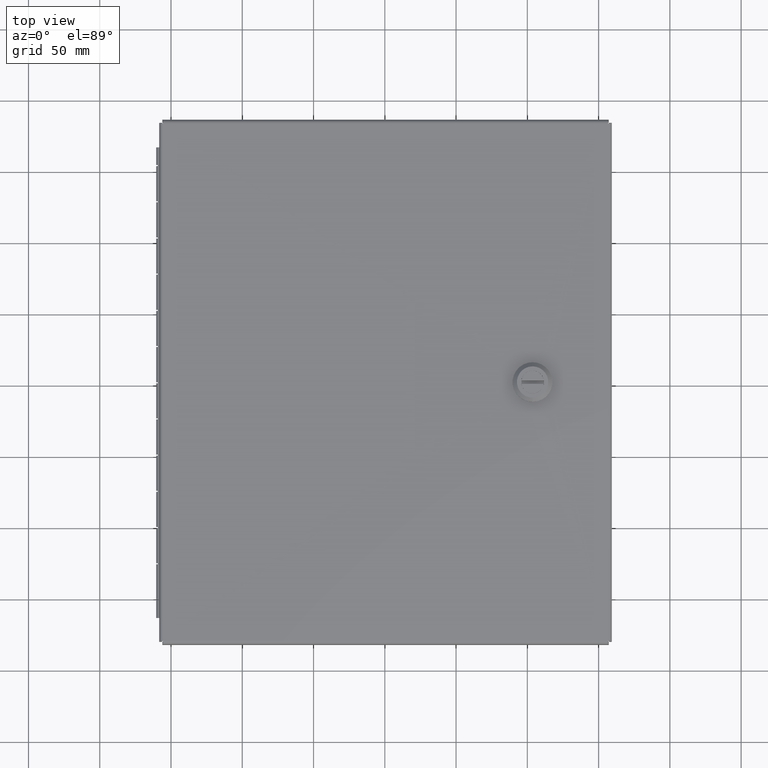
[diagram: clean part render]
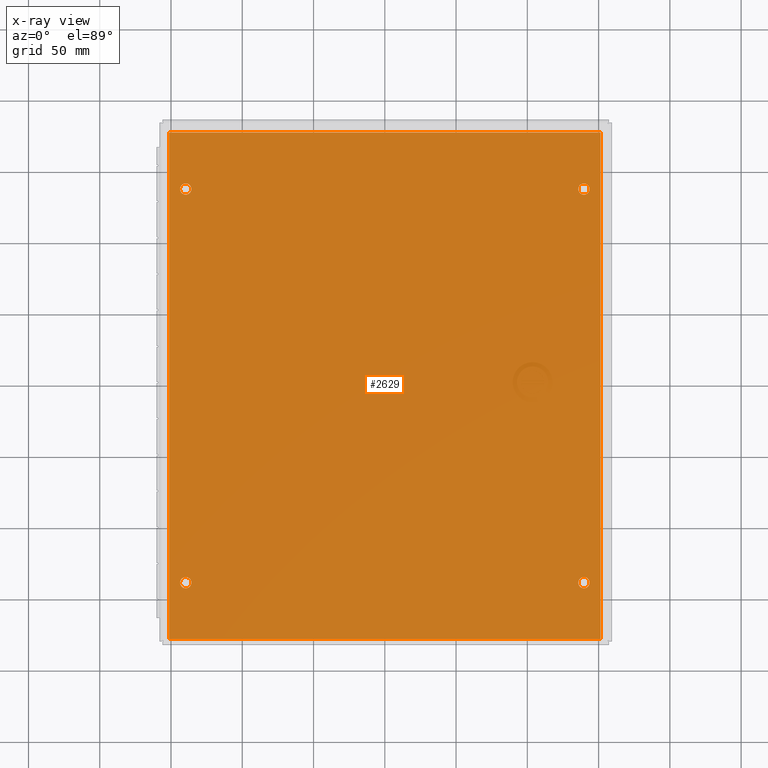
[diagram: x-ray — body ghosted, one internal face saturated and labeled with its STEP entity id]
A machine part, top view, then the same camera in x-ray: the body is ghosted and one INTERNAL B-rep face — a face not visible from any outside direction — is saturated and labeled: STEP entity #2629.
In plain terms, the highlighted planar face has unit normal (0, 0, 1).
Its self-contained STEP definition (entity closure, byte-faithful):
#1567=CARTESIAN_POINT('',(-5.656250000000006,5.437500000000002,0.074));
#1568=VERTEX_POINT('',#1567);
#1569=CARTESIAN_POINT('',(-5.500000000000005,5.437500000000002,0.074));
#1570=DIRECTION('',(0.0,0.0,-1.0));
#1571=DIRECTION('',(1.0,0.0,0.0));
#1572=AXIS2_PLACEMENT_3D('',#1569,#1570,#1571);
#1573=CIRCLE('',#1572,0.15625);
#1574=EDGE_CURVE('',#1568,#1568,#1573,.T.);
#1595=CARTESIAN_POINT('',(-5.656250000000004,-5.437499999999999,0.074));
#1596=VERTEX_POINT('',#1595);
#1597=CARTESIAN_POINT('',(-5.500000000000003,-5.437499999999999,0.074));
#1598=DIRECTION('',(0.0,0.0,-1.0));
#1599=DIRECTION('',(1.0,0.0,0.0));
#1600=AXIS2_PLACEMENT_3D('',#1597,#1598,#1599);
#1601=CIRCLE('',#1600,0.15625);
#1602=EDGE_CURVE('',#1596,#1596,#1601,.T.);
#1623=CARTESIAN_POINT('',(5.343749999999995,5.437500000000002,0.074));
#1624=VERTEX_POINT('',#1623);
#1625=CARTESIAN_POINT('',(5.499999999999995,5.437500000000002,0.074));
#1626=DIRECTION('',(0.0,0.0,-1.0));
#1627=DIRECTION('',(1.0,0.0,0.0));
#1628=AXIS2_PLACEMENT_3D('',#1625,#1626,#1627);
#1629=CIRCLE('',#1628,0.15625);
#1630=EDGE_CURVE('',#1624,#1624,#1629,.T.);
#1651=CARTESIAN_POINT('',(5.343749999999996,-5.437499999999999,0.074));
#1652=VERTEX_POINT('',#1651);
#1653=CARTESIAN_POINT('',(5.499999999999997,-5.437499999999999,0.074));
#1654=DIRECTION('',(0.0,0.0,-1.0));
#1655=DIRECTION('',(1.0,0.0,0.0));
#1656=AXIS2_PLACEMENT_3D('',#1653,#1654,#1655);
#1657=CIRCLE('',#1656,0.15625);
#1658=EDGE_CURVE('',#1652,#1652,#1657,.T.);
#2348=CARTESIAN_POINT('',(-5.95725,7.000000000000001,0.074));
#2349=VERTEX_POINT('',#2348);
#2374=CARTESIAN_POINT('',(-5.957249999999998,-7.000000000000001,0.074));
#2375=VERTEX_POINT('',#2374);
#2411=CARTESIAN_POINT('',(-5.95725,7.0,0.074));
#2412=DIRECTION('',(0.0,-1.0,0.0));
#2413=VECTOR('',#2412,14.0);
#2414=LINE('',#2411,#2413);
#2415=EDGE_CURVE('',#2349,#2375,#2414,.T.);
#2465=CARTESIAN_POINT('',(5.95725,-6.999999999999999,0.074));
#2466=VERTEX_POINT('',#2465);
#2491=CARTESIAN_POINT('',(5.957249999999998,7.000000000000001,0.074));
#2492=VERTEX_POINT('',#2491);
#2528=CARTESIAN_POINT('',(5.95725,-7.0,0.074));
#2529=DIRECTION('',(0.0,1.0,0.0));
#2530=VECTOR('',#2529,14.0);
#2531=LINE('',#2528,#2530);
#2532=EDGE_CURVE('',#2466,#2492,#2531,.T.);
#2551=CARTESIAN_POINT('',(-5.957250000000001,7.000000000000001,0.074));
#2552=DIRECTION('',(1.0,0.0,0.0));
#2553=VECTOR('',#2552,11.9145);
#2554=LINE('',#2551,#2553);
#2555=EDGE_CURVE('',#2349,#2492,#2554,.T.);
#2595=CARTESIAN_POINT('',(5.957250000000001,-6.999999999999999,0.074));
#2596=DIRECTION('',(-1.0,0.0,0.0));
#2597=VECTOR('',#2596,11.9145);
#2598=LINE('',#2595,#2597);
#2599=EDGE_CURVE('',#2466,#2375,#2598,.T.);
#2606=CARTESIAN_POINT('',(0.0,1.362811E-016,0.074));
#2607=DIRECTION('',(0.0,0.0,1.0));
#2608=DIRECTION('',(1.0,0.0,0.0));
#2609=AXIS2_PLACEMENT_3D('',#2606,#2607,#2608);
#2610=PLANE('',#2609);
#2611=ORIENTED_EDGE('',*,*,#2532,.T.);
#2612=ORIENTED_EDGE('',*,*,#2555,.F.);
#2613=ORIENTED_EDGE('',*,*,#2415,.T.);
#2614=ORIENTED_EDGE('',*,*,#2599,.F.);
#2615=EDGE_LOOP('',(#2611,#2612,#2613,#2614));
#2616=FACE_OUTER_BOUND('',#2615,.T.);
#2617=ORIENTED_EDGE('',*,*,#1574,.T.);
#2618=EDGE_LOOP('',(#2617));
#2619=FACE_BOUND('',#2618,.T.);
#2620=ORIENTED_EDGE('',*,*,#1602,.T.);
#2621=EDGE_LOOP('',(#2620));
#2622=FACE_BOUND('',#2621,.T.);
#2623=ORIENTED_EDGE('',*,*,#1630,.T.);
#2624=EDGE_LOOP('',(#2623));
#2625=FACE_BOUND('',#2624,.T.);
#2626=ORIENTED_EDGE('',*,*,#1658,.T.);
#2627=EDGE_LOOP('',(#2626));
#2628=FACE_BOUND('',#2627,.T.);
#2629=ADVANCED_FACE('',(#2616,#2619,#2622,#2625,#2628),#2610,.T.);